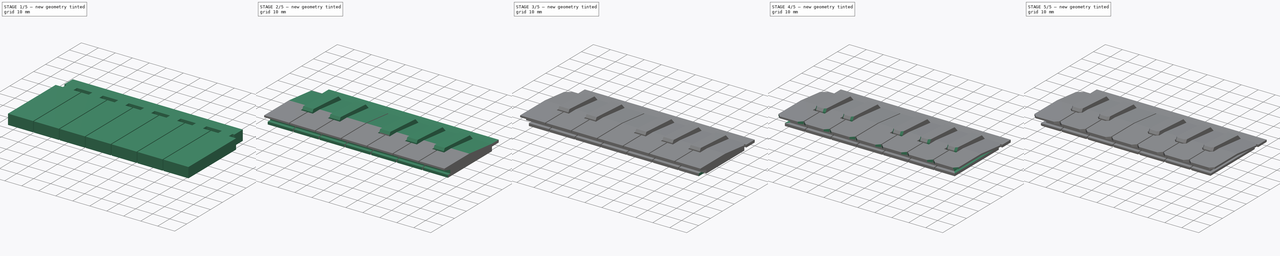
[diagram: build sequence overview — one tinted view per stage of 5, left to right]
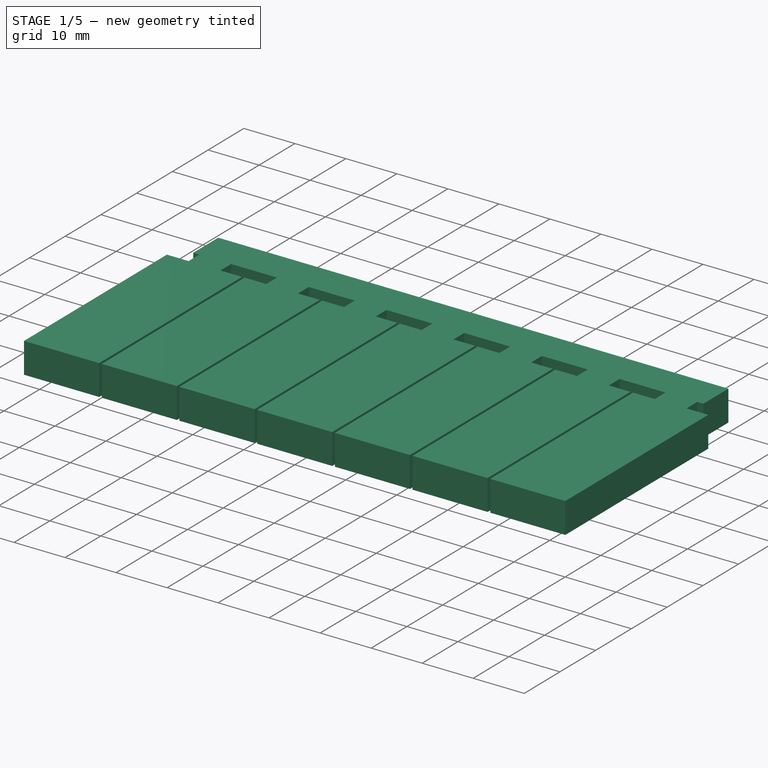
[diagram: stage 1 of 5 — iso view after this stage's code; geometry added in this stage tinted green]
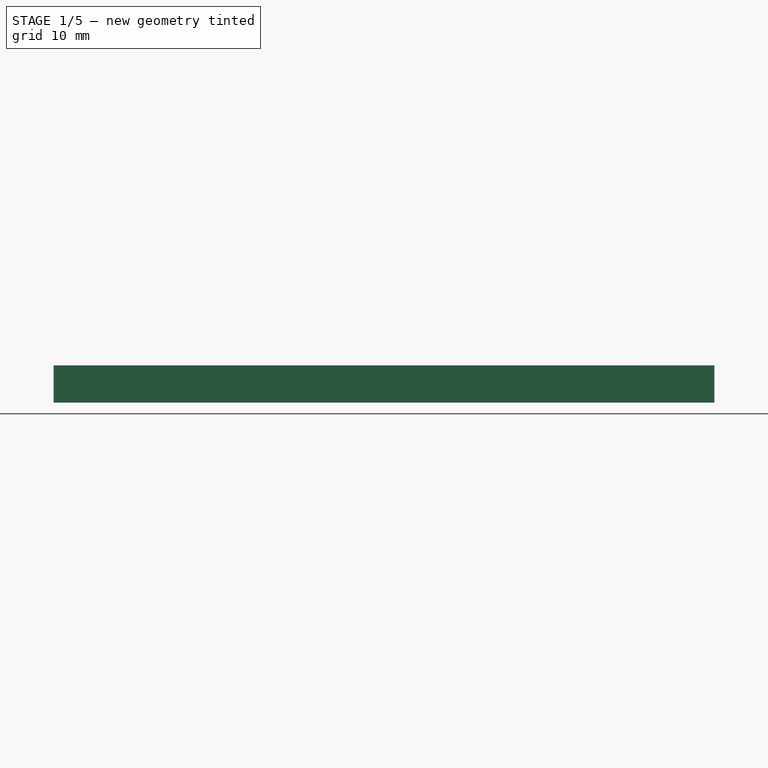
[diagram: stage 1 of 5 — front view after this stage's code; geometry added in this stage tinted green]
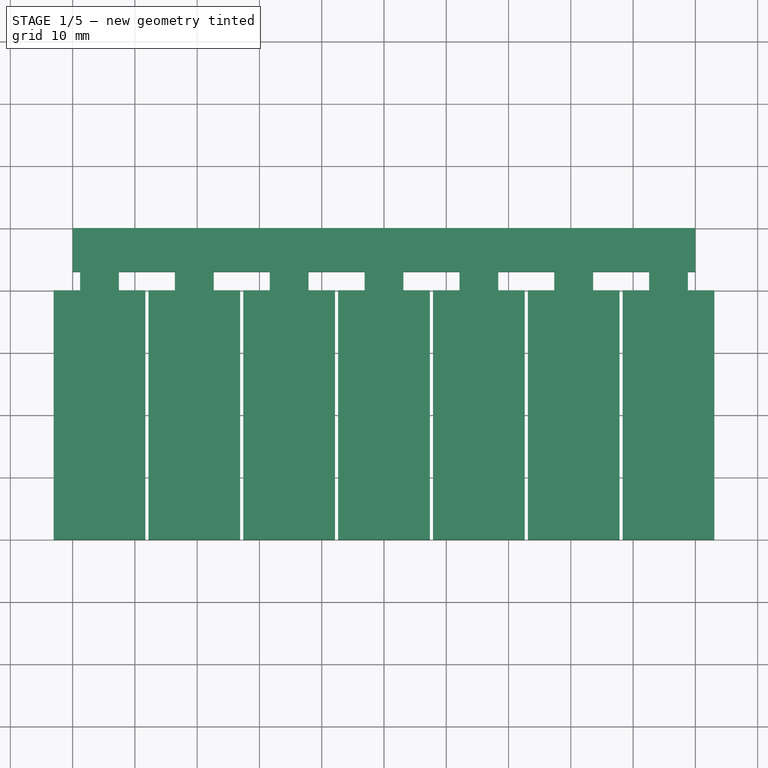
[diagram: stage 1 of 5 — top view after this stage's code; geometry added in this stage tinted green]
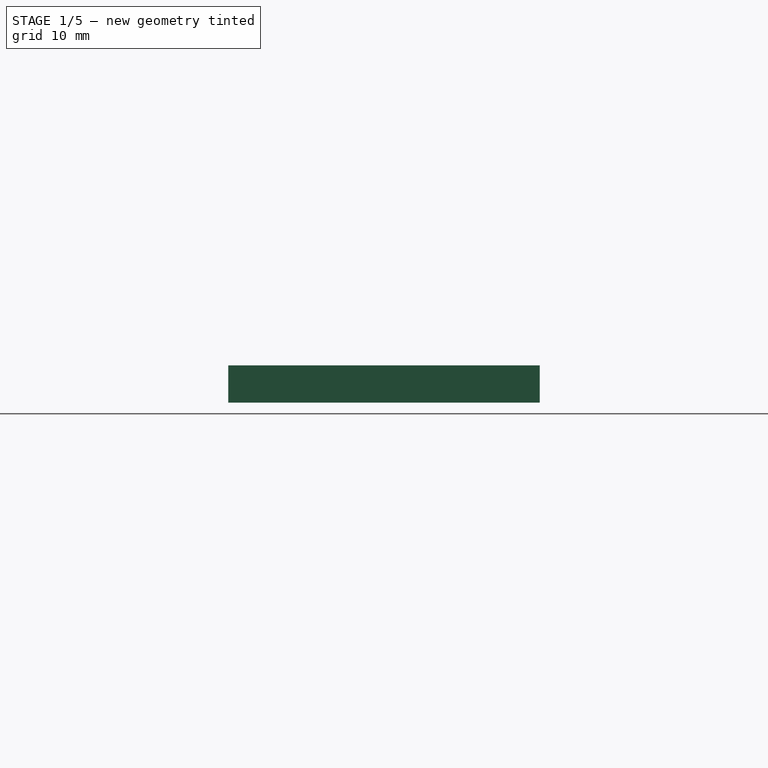
[diagram: stage 1 of 5 — right view after this stage's code; geometry added in this stage tinted green]
FCSTD DOCUMENT  (FreeCAD 0.19R24276 (Git))
Label: piano
License: All rights reserved
LicenseURL: http://en.wikipedia.org/wiki/All_rights_reserved
objects: Sketcher::SketchObject×10, PartDesign::Pocket×8, PartDesign::Chamfer×4, PartDesign::Pad×2, PartDesign::Mirrored×2, PartDesign::LinearPattern×1, PartDesign::Body×1
note: 42 computed .brp shape members not serialized (recipe doc carries the construction recipe); baked Part::Feature solids carry a one-line shape summary decoded from their .brp

FEATURE [Sketcher::SketchObject] Sketch
  FullyConstrained = true
  MapMode = 5
  Support = -> [XY_Plane]
  expr: Constraints[23] = 106.6
  sketch-geometry (10):
    g0: LineSegment StartX=-50 StartY=0 StartZ=0 EndX=50 EndY=0 EndZ=0
    g1: LineSegment StartX=50 StartY=0 StartZ=0 EndX=50 EndY=-10 EndZ=0
    g2: LineSegment StartX=-50 StartY=-10 StartZ=0 EndX=-50 EndY=0 EndZ=0
    g3: LineSegment StartX=-50 StartY=-10 StartZ=0 EndX=0 EndY=0 EndZ=0
    g4: LineSegment StartX=0 StartY=0 StartZ=0 EndX=50 EndY=-10 EndZ=0
    g5: LineSegment StartX=-50 StartY=-10 StartZ=0 EndX=-53.3 EndY=-10 EndZ=0
    g6: LineSegment StartX=50 StartY=-10 StartZ=0 EndX=53.3 EndY=-10 EndZ=0
    g7: LineSegment StartX=53.3 StartY=-10 StartZ=0 EndX=53.3 EndY=-50 EndZ=0
    g8: LineSegment StartX=-53.3 StartY=-10 StartZ=0 EndX=-53.3 EndY=-50 EndZ=0
    g9: LineSegment StartX=-53.3 StartY=-50 StartZ=0 EndX=53.3 EndY=-50 EndZ=0
  constraints (28):
    c: Coincident(g0,g1)
    c: Coincident(g2,g0)
    c: Horizontal(g0)
    c: Vertical(g1)
    c: Vertical(g2)
    c: PointOnObject(g0,g-1)
    c: Coincident(g2,g3)
    c: Coincident(g3,g-1)
    c: Coincident(g3,g4)
    c: Coincident(g4,g1)
    c: Equal(g3,g4)
    c: DistanceX(g0,g0) = 100
    c: DistanceY(g2,g2) = 10
    c: Equal(g1,g2)
    c: Coincident(g2,g5)
    c: Horizontal(g5)
    c: Coincident(g1,g6)
    c: Horizontal(g6)
    c: Coincident(g6,g7)
    c: Vertical(g7)
    c: Coincident(g5,g8)
    c: Vertical(g8)
    c: Equal(g5,g6)
    c: DistanceX(g5,g6) = 106.6
    c: Coincident(g9,g8)
    c: Coincident(g9,g7)
    c: Horizontal(g9)
    c: DistanceY(g8,g0) = 50
FEATURE [PartDesign::Pad] Pad
  Direction = (1,1,1)
  Length = 6
  Length2 = 100
  Profile = -> Sketch
  Type = 0
FEATURE [Sketcher::SketchObject] Sketch001
  FullyConstrained = true
  MapMode = 5
  Support = -> [XY_Plane]
  expr: Constraints[15] = 106.6 / 2
  sketch-geometry (11):
    g0: LineSegment StartX=-53.55 StartY=-10 StartZ=0 EndX=-53.05 EndY=-10 EndZ=0
    g1: LineSegment StartX=-53.05 StartY=-10 StartZ=0 EndX=-53.05 EndY=-50 EndZ=0
    g2: LineSegment StartX=-53.05 StartY=-50 StartZ=0 EndX=-53.55 EndY=-50 EndZ=0
    g3: LineSegment StartX=-53.55 StartY=-50 StartZ=0 EndX=-53.55 EndY=-10 EndZ=0
    g4: LineSegment StartX=-53.05 StartY=-10 StartZ=0 EndX=-53.3 EndY=0 EndZ=0
    g5: LineSegment StartX=-53.3 StartY=0 StartZ=0 EndX=-53.55 EndY=-10 EndZ=0
    g6: LineSegment StartX=-53.05 StartY=-10 StartZ=0 EndX=-48.8 EndY=-10 EndZ=0
    g7: LineSegment StartX=-48.8 StartY=-10 StartZ=0 EndX=-48.8 EndY=-7 EndZ=0
    g8: LineSegment StartX=-48.8 StartY=-7 StartZ=0 EndX=-57.8 EndY=-7 EndZ=0
    g9: LineSegment StartX=-57.8 StartY=-7 StartZ=0 EndX=-57.8 EndY=-10 EndZ=0
    g10: LineSegment StartX=-57.8 StartY=-10 StartZ=0 EndX=-53.55 EndY=-10 EndZ=0
  constraints (31):
    c: Coincident(g0,g1)
    c: Coincident(g1,g2)
    c: Coincident(g2,g3)
    c: Coincident(g3,g0)
    c: Horizontal(g0)
    c: Horizontal(g2)
    c: Vertical(g1)
    c: Vertical(g3)
    c: Coincident(g0,g4)
    c: PointOnObject(g4,g-1)
    c: Coincident(g4,g5)
    c: Coincident(g5,g0)
    c: Equal(g5,g4)
    c: DistanceY(g0,g-1) = 10
    c: DistanceX(g2,g2) = 0.5
    c: DistanceX(g4,g-1) = 53.3
    c: DistanceY(g2,g-1) = 50
    c: Coincident(g1,g6)
    c: Horizontal(g6)
    c: Coincident(g6,g7)
    c: Vertical(g7)
    c: Coincident(g7,g8)
    c: Horizontal(g8)
    c: Coincident(g8,g9)
    c: Vertical(g9)
    c: Coincident(g9,g10)
    c: Coincident(g10,g3)
    c: Horizontal(g10)
    c: Equal(g6,g10)
    c: DistanceX(g8,g8) = 9
    c: DistanceY(g9,g9) = 3
FEATURE [PartDesign::Pocket] Pocket
  BaseFeature = -> Pad
  Length = 5
  Length2 = 100
  Midplane = true
  Profile = -> Sketch001
  Type = 1
FEATURE [PartDesign::LinearPattern] LinearPattern
  BaseFeature = -> Pocket
  Direction = -> X_Axis
  Length = 106.6
  Occurrences = 8
  Originals = -> [Pocket]
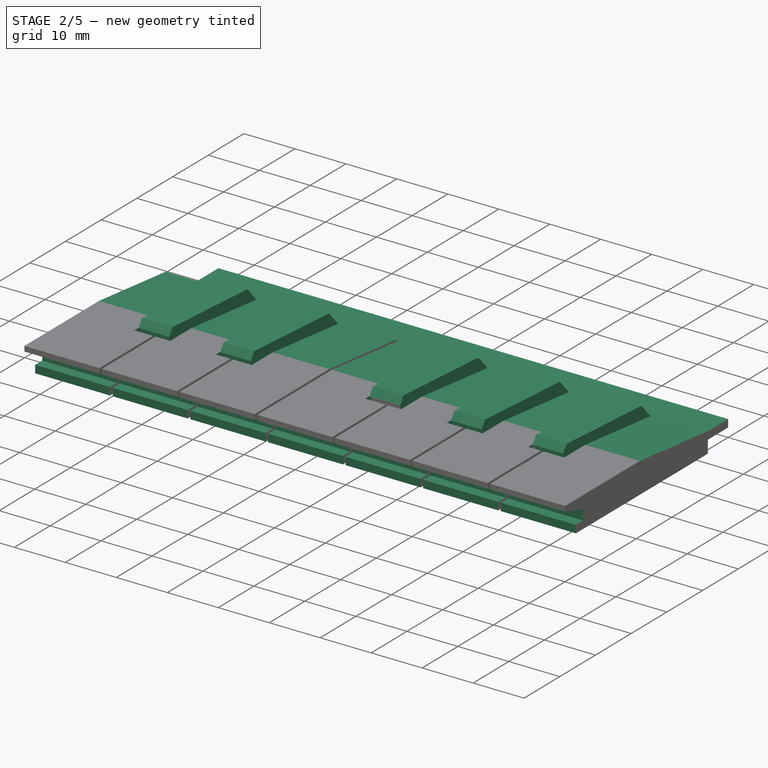
[diagram: stage 2 of 5 — iso view after this stage's code; geometry added in this stage tinted green]
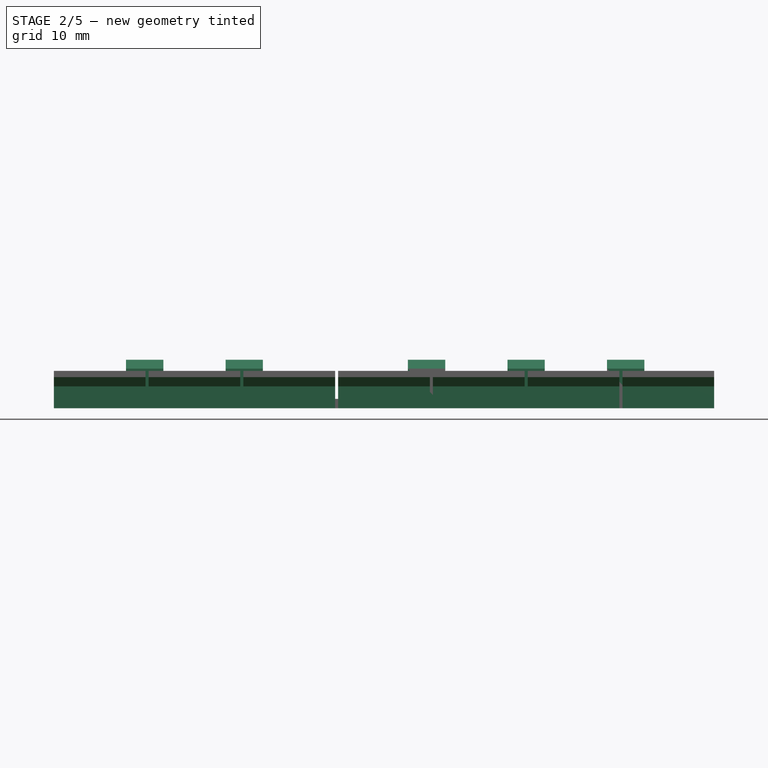
[diagram: stage 2 of 5 — front view after this stage's code; geometry added in this stage tinted green]
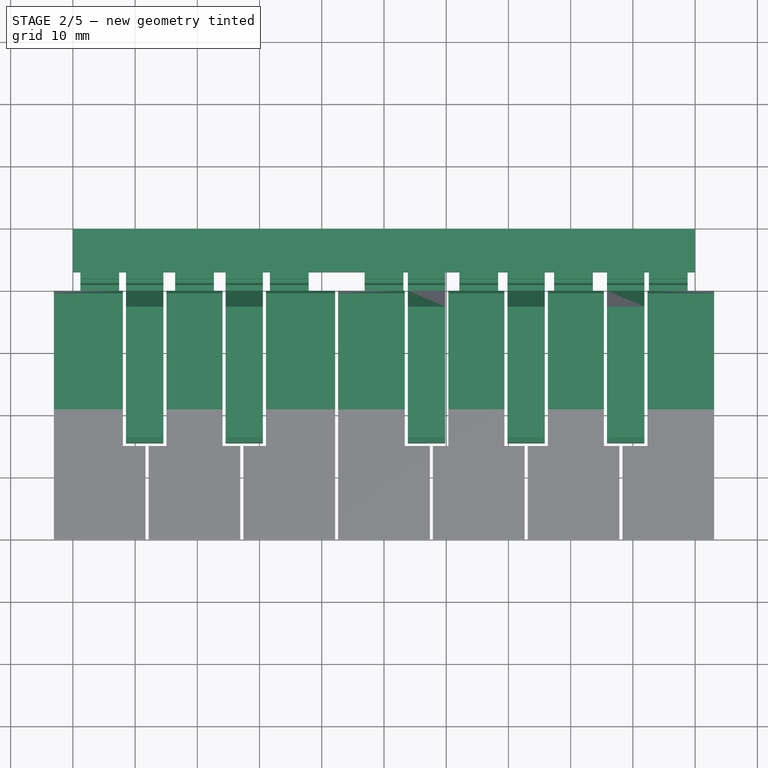
[diagram: stage 2 of 5 — top view after this stage's code; geometry added in this stage tinted green]
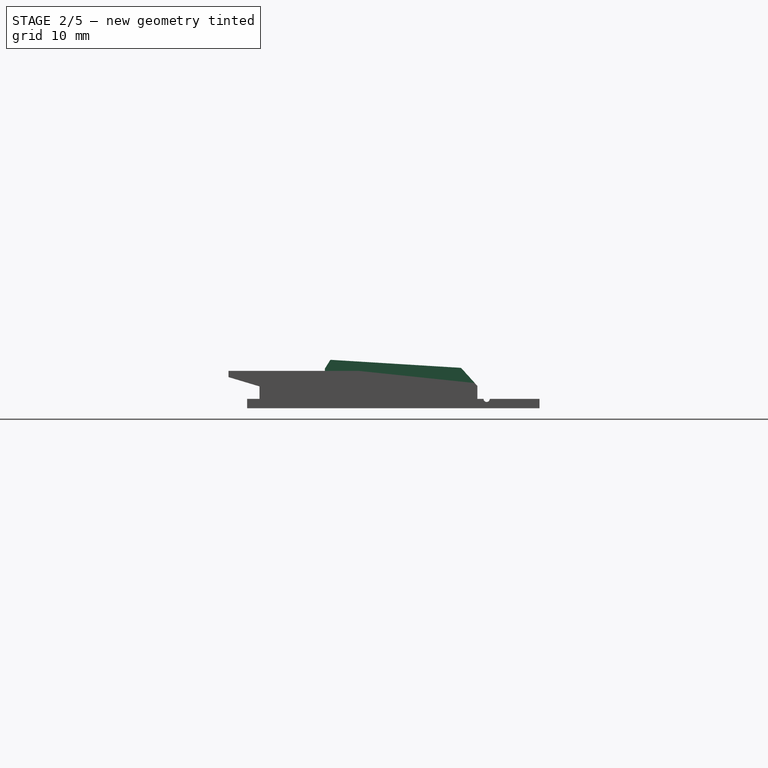
[diagram: stage 2 of 5 — right view after this stage's code; geometry added in this stage tinted green]
FEATURE [Sketcher::SketchObject] Sketch002
  AttachmentOffset = pos=(0,0,55) rot=(0,0,1;0rad)
  FullyConstrained = false
  MapMode = 5
  Placement = pos=(55,-1.22e-14,1.22e-14) rot=(0.57735,0.57735,0.57735;2.0944rad)
  Support = -> [YZ_Plane]
  sketch-geometry (12):
    g0: LineSegment StartX=-29.1054 StartY=6 StartZ=0 EndX=-10 EndY=4 EndZ=0
    g1: LineSegment StartX=-10 StartY=4 StartZ=0 EndX=-10 EndY=1.5 EndZ=0
    g2: LineSegment StartX=-10 StartY=1.5 StartZ=0 EndX=0 EndY=1.5 EndZ=0
    g3: LineSegment StartX=0 StartY=1.5 StartZ=0 EndX=0 EndY=0 EndZ=0
    g4: LineSegment StartX=0 StartY=0 StartZ=0 EndX=-47 EndY=0 EndZ=0
    g5: LineSegment StartX=-47 StartY=0 StartZ=0 EndX=-47 EndY=1.5 EndZ=0
    g6: LineSegment StartX=-47 StartY=1.5 StartZ=0 EndX=-45 EndY=1.5 EndZ=0
    g7: LineSegment StartX=-29.1054 StartY=6 StartZ=0 EndX=-50 EndY=6 EndZ=0
    g8: LineSegment StartX=-50 StartY=6 StartZ=0 EndX=-50 EndY=5 EndZ=0
    g9: LineSegment StartX=-50 StartY=5 StartZ=0 EndX=-45 EndY=3.5 EndZ=0
    g10: LineSegment StartX=-45 StartY=3.5 StartZ=0 EndX=-45 EndY=1.5 EndZ=0
    g11: Circle CenterX=0 CenterY=0 CenterZ=0 NormalX=0 NormalY=0 NormalZ=1 AngleXU=0 Radius=60
  constraints (33):
    c: Coincident(g0,g1)
    c: Vertical(g1)
    c: Coincident(g1,g2)
    c: PointOnObject(g2,g-2)
    c: Horizontal(g2)
    c: Coincident(g2,g3)
    c: Coincident(g3,g-1)
    c: Coincident(g3,g4)
    c: PointOnObject(g4,g-1)
    c: Coincident(g4,g5)
    c: Vertical(g5)
    c: Coincident(g5,g6)
    c: Horizontal(g6)
    c: DistanceX(g4,g4) = 47
    c: DistanceY(g5,g5) = 1.5
    c: DistanceX(g6,g6) = 2
    c: Horizontal(g7)
    c: Coincident(g7,g8)
    c: Vertical(g8)
    c: Coincident(g8,g9)
    c: Coincident(g9,g10)
    c: Coincident(g10,g6)
    c: Vertical(g10)
    c: DistanceY(g3,g7) = 6
    c: DistanceX(g1,g3) = 10
    c: DistanceY(g3,g3) = 1.5
    c: Coincident(g11,g3)
    c: Radius(g11) = 60
    c: DistanceX(g7,g3) = 50
    c: DistanceY(g1,g1) = 2.5
    c: Coincident(g0,g7)
    c: DistanceY(g8,g8) = 1
    c: DistanceY(g9,g9) = 1.5
FEATURE [PartDesign::Pocket] Pocket001
  BaseFeature = -> LinearPattern
  Length = 5
  Length2 = 100
  Midplane = true
  Profile = -> Sketch002
  Type = 1
FEATURE [Sketcher::SketchObject] Sketch003
  AttachmentOffset = pos=(0,0,10) rot=(0,0,1;0rad)
  FullyConstrained = true
  MapMode = 5
  Placement = pos=(0,0,10) rot=(0,0,1;0rad)
  Support = -> [XY_Plane]
  expr: Constraints[76] = 53.3 / 7 * 3
  expr: Constraints[73] = 53.3 / 7 * 4
  sketch-geometry (28):
    g0: LineSegment StartX=-41.9571 StartY=-10 StartZ=0 EndX=-34.9571 EndY=-10 EndZ=0
    g1: LineSegment StartX=-34.9571 StartY=-10 StartZ=0 EndX=-34.9571 EndY=-35 EndZ=0
    g2: LineSegment StartX=-34.9571 StartY=-35 StartZ=0 EndX=-41.9571 EndY=-35 EndZ=0
    g3: LineSegment StartX=-41.9571 StartY=-35 StartZ=0 EndX=-41.9571 EndY=-10 EndZ=0
    g4: LineSegment StartX=-25.9571 StartY=-10 StartZ=0 EndX=-18.9571 EndY=-10 EndZ=0
    g5: LineSegment StartX=-18.9571 StartY=-10 StartZ=0 EndX=-18.9571 EndY=-35 EndZ=0
    g6: LineSegment StartX=-18.9571 StartY=-35 StartZ=0 EndX=-25.9571 EndY=-35 EndZ=0
    g7: LineSegment StartX=-25.9571 StartY=-35 StartZ=0 EndX=-25.9571 EndY=-10 EndZ=0
    g8: LineSegment StartX=3.34286 StartY=-10 StartZ=0 EndX=10.3429 EndY=-10 EndZ=0
    g9: LineSegment StartX=10.3429 StartY=-10 StartZ=0 EndX=10.3429 EndY=-35 EndZ=0
    g10: LineSegment StartX=10.3429 StartY=-35 StartZ=0 EndX=3.34286 EndY=-35 EndZ=0
    g11: LineSegment StartX=3.34286 StartY=-35 StartZ=0 EndX=3.34286 EndY=-10 EndZ=0
    g12: LineSegment StartX=19.3429 StartY=-10 StartZ=0 EndX=26.3429 EndY=-10 EndZ=0
    g13: LineSegment StartX=26.3429 StartY=-10 StartZ=0 EndX=26.3429 EndY=-35 EndZ=0
    g14: LineSegment StartX=26.3429 StartY=-35 StartZ=0 EndX=19.3429 EndY=-35 EndZ=0
    g15: LineSegment StartX=19.3429 StartY=-35 StartZ=0 EndX=19.3429 EndY=-10 EndZ=0
    g16: LineSegment StartX=35.3429 StartY=-10 StartZ=0 EndX=42.3429 EndY=-10 EndZ=0
    g17: LineSegment StartX=42.3429 StartY=-10 StartZ=0 EndX=42.3429 EndY=-35 EndZ=0
    g18: LineSegment StartX=42.3429 StartY=-35 StartZ=0 EndX=35.3429 EndY=-35 EndZ=0
    g19: LineSegment StartX=35.3429 StartY=-35 StartZ=0 EndX=35.3429 EndY=-10 EndZ=0
    g20: LineSegment StartX=-34.9571 StartY=-10 StartZ=0 EndX=-30.4571 EndY=0 EndZ=0
    g21: LineSegment StartX=-30.4571 StartY=0 StartZ=0 EndX=-25.9571 EndY=-10 EndZ=0
    g22: LineSegment StartX=-25.9571 StartY=-10 StartZ=0 EndX=-34.9571 EndY=-10 EndZ=0
    g23: LineSegment StartX=10.3429 StartY=-10 StartZ=0 EndX=19.3429 EndY=-10 EndZ=0
    g24: LineSegment StartX=26.3429 StartY=-10 StartZ=0 EndX=35.3429 EndY=-10 EndZ=0
    g25: LineSegment StartX=-18.9571 StartY=-10 StartZ=0 EndX=3.34286 EndY=-10 EndZ=0
    g26: LineSegment StartX=19.3429 StartY=-10 StartZ=0 EndX=22.8429 EndY=0 EndZ=0
    g27: LineSegment StartX=26.3429 StartY=-10 StartZ=0 EndX=22.8429 EndY=0 EndZ=0
  constraints (78):
    c: Coincident(g0,g1)
    c: Coincident(g1,g2)
    c: Coincident(g2,g3)
    c: Coincident(g3,g0)
    c: Horizontal(g0)
    c: Horizontal(g2)
    c: Vertical(g1)
    c: Vertical(g3)
    c: Coincident(g4,g5)
    c: Coincident(g5,g6)
    c: Coincident(g6,g7)
    c: Coincident(g7,g4)
    c: Horizontal(g4)
    c: Horizontal(g6)
    c: Vertical(g5)
    c: Vertical(g7)
    c: Coincident(g8,g9)
    c: Coincident(g9,g10)
    c: Coincident(g10,g11)
    c: Coincident(g11,g8)
    c: Horizontal(g8)
    c: Horizontal(g10)
    c: Vertical(g9)
    c: Vertical(g11)
    c: Coincident(g12,g13)
    c: Coincident(g13,g14)
    c: Coincident(g14,g15)
    c: Coincident(g15,g12)
    c: Horizontal(g12)
    c: Horizontal(g14)
    c: Vertical(g13)
    c: Vertical(g15)
    c: Coincident(g16,g17)
    c: Coincident(g17,g18)
    c: Coincident(g18,g19)
    c: Coincident(g19,g16)
    c: Horizontal(g16)
    c: Horizontal(g18)
    c: Vertical(g17)
    c: Vertical(g19)
    c: Coincident(g0,g20)
    c: PointOnObject(g20,g-1)
    c: Coincident(g20,g21)
    c: Coincident(g21,g4)
    c: Coincident(g21,g22)
    c: Coincident(g22,g20)
    c: Horizontal(g22)
    c: Coincident(g8,g23)
    c: Coincident(g23,g12)
    c: Horizontal(g23)
    c: Coincident(g12,g24)
    c: Coincident(g24,g16)
    c: Horizontal(g24)
    c: Coincident(g4,g25)
    c: Coincident(g25,g8)
    c: Horizontal(g25)
    c: Coincident(g26,g12)
    c: PointOnObject(g26,g-1)
    c: Coincident(g27,g12)
    c: Coincident(g27,g26)
    c: Equal(g26,g27)
    c: Equal(g20,g21)
    c: DistanceY(g20,g20) = 10
    c: Equal(g2,g6)
    c: Equal(g6,g10)
    c: Equal(g10,g14)
    c: Equal(g14,g18)
    c: DistanceX(g0,g0) = 7
    c: Equal(g3,g7)
    c: Equal(g7,g11)
    c: Equal(g11,g15)
    c: Equal(g15,g19)
    c: DistanceY(g3,g3) = 25
    c: DistanceX(g20,g-1) = 30.4571
    c: Equal(g22,g23)
    c: Equal(g23,g24)
    c: DistanceX(g-1,g26) = 22.8429
    c: DistanceX(g22,g22) = 9
FEATURE [PartDesign::Pocket] Pocket002
  BaseFeature = -> Pocket001
  Length = 5
  Length2 = 100
  Profile = -> Sketch003
  Type = 1
FEATURE [Sketcher::SketchObject] Sketch004
  FullyConstrained = true
  MapMode = 5
  Support = -> [XY_Plane]
  expr: Constraints[74] = 53.3 / 7 * 3
  expr: Constraints[73] = 53.3 / 7 * 4
  sketch-geometry (28):
    g0: LineSegment StartX=-41.4571 StartY=-4 StartZ=0 EndX=-35.4571 EndY=-4 EndZ=0
    g1: LineSegment StartX=-35.4571 StartY=-4 StartZ=0 EndX=-35.4571 EndY=-34.5 EndZ=0
    g2: LineSegment StartX=-35.4571 StartY=-34.5 StartZ=0 EndX=-41.4571 EndY=-34.5 EndZ=0
    g3: LineSegment StartX=-41.4571 StartY=-34.5 StartZ=0 EndX=-41.4571 EndY=-4 EndZ=0
    g4: LineSegment StartX=-35.4571 StartY=-4 StartZ=0 EndX=-30.4571 EndY=0 EndZ=0
    g5: LineSegment StartX=-30.4571 StartY=0 StartZ=0 EndX=-25.4571 EndY=-4 EndZ=0
    g6: LineSegment StartX=19.8429 StartY=-4 StartZ=0 EndX=22.8429 EndY=0 EndZ=0
    g7: LineSegment StartX=22.8429 StartY=0 StartZ=0 EndX=25.8429 EndY=-4 EndZ=0
    g8: LineSegment StartX=-25.4571 StartY=-4 StartZ=0 EndX=-19.4571 EndY=-4 EndZ=0
    g9: LineSegment StartX=-19.4571 StartY=-4 StartZ=0 EndX=-19.4571 EndY=-34.5 EndZ=0
    g10: LineSegment StartX=-19.4571 StartY=-34.5 StartZ=0 EndX=-25.4571 EndY=-34.5 EndZ=0
    g11: LineSegment StartX=-25.4571 StartY=-34.5 StartZ=0 EndX=-25.4571 EndY=-4 EndZ=0
    g12: LineSegment StartX=3.84286 StartY=-4 StartZ=0 EndX=9.84286 EndY=-4 EndZ=0
    g13: LineSegment StartX=9.84286 StartY=-4 StartZ=0 EndX=9.84286 EndY=-34.5 EndZ=0
    g14: LineSegment StartX=9.84286 StartY=-34.5 StartZ=0 EndX=3.84286 EndY=-34.5 EndZ=0
    g15: LineSegment StartX=3.84286 StartY=-34.5 StartZ=0 EndX=3.84286 EndY=-4 EndZ=0
    g16: LineSegment StartX=19.8429 StartY=-4 StartZ=0 EndX=25.8429 EndY=-4 EndZ=0
    g17: LineSegment StartX=25.8429 StartY=-4 StartZ=0 EndX=25.8429 EndY=-34.5 EndZ=0
    g18: LineSegment StartX=25.8429 StartY=-34.5 StartZ=0 EndX=19.8429 EndY=-34.5 EndZ=0
    g19: LineSegment StartX=19.8429 StartY=-34.5 StartZ=0 EndX=19.8429 EndY=-4 EndZ=0
    g20: LineSegment StartX=35.8429 StartY=-4 StartZ=0 EndX=41.8429 EndY=-4 EndZ=0
    g21: LineSegment StartX=41.8429 StartY=-4 StartZ=0 EndX=41.8429 EndY=-34.5 EndZ=0
    g22: LineSegment StartX=41.8429 StartY=-34.5 StartZ=0 EndX=35.8429 EndY=-34.5 EndZ=0
    g23: LineSegment StartX=35.8429 StartY=-34.5 StartZ=0 EndX=35.8429 EndY=-4 EndZ=0
    g24: LineSegment StartX=-35.4571 StartY=-4 StartZ=0 EndX=-25.4571 EndY=-4 EndZ=0
    g25: LineSegment StartX=-19.4571 StartY=-4 StartZ=0 EndX=3.84286 EndY=-4 EndZ=0
    g26: LineSegment StartX=9.84286 StartY=-4 StartZ=0 EndX=19.8429 EndY=-4 EndZ=0
    g27: LineSegment StartX=25.8429 StartY=-4 StartZ=0 EndX=35.8429 EndY=-4 EndZ=0
  constraints (78):
    c: Coincident(g0,g1)
    c: Coincident(g1,g2)
    c: Coincident(g2,g3)
    c: Coincident(g3,g0)
    c: Horizontal(g0)
    c: Horizontal(g2)
    c: Vertical(g1)
    c: Vertical(g3)
    c: Coincident(g0,g4)
    c: PointOnObject(g4,g-1)
    c: Coincident(g4,g5)
    c: PointOnObject(g6,g-1)
    c: Coincident(g6,g7)
    c: Coincident(g8,g9)
    c: Coincident(g9,g10)
    c: Coincident(g10,g11)
    c: Coincident(g11,g8)
    c: Horizontal(g8)
    c: Horizontal(g10)
    c: Vertical(g9)
    c: Vertical(g11)
    c: Coincident(g8,g5)
    c: Coincident(g12,g13)
    c: Coincident(g13,g14)
    c: Coincident(g14,g15)
    c: Coincident(g15,g12)
    c: Horizontal(g12)
    c: Horizontal(g14)
    c: Vertical(g13)
    c: Vertical(g15)
    c: Coincident(g16,g17)
    c: Coincident(g17,g18)
    c: Coincident(g18,g19)
    c: Coincident(g19,g16)
    c: Horizontal(g16)
    c: Horizontal(g18)
    c: Vertical(g17)
    c: Vertical(g19)
    c: Coincident(g16,g6)
    c: Coincident(g16,g7)
    c: Equal(g4,g5)
    c: Equal(g6,g7)
    c: Coincident(g20,g21)
    c: Coincident(g21,g22)
    c: Coincident(g22,g23)
    c: Coincident(g23,g20)
    c: Horizontal(g20)
    c: Horizontal(g22)
    c: Vertical(g21)
    c: Vertical(g23)
    c: Coincident(g24,g0)
    c: Coincident(g24,g8)
    c: Horizontal(g24)
    c: Coincident(g25,g8)
    c: Coincident(g25,g12)
    c: Horizontal(g25)
    c: Coincident(g26,g12)
    c: Coincident(g26,g16)
    c: Horizontal(g26)
    c: Coincident(g27,g16)
    c: Coincident(g27,g20)
    c: Horizontal(g27)
    c: Equal(g27,g26)
    c: Equal(g26,g24)
    c: Equal(g0,g8)
    c: Equal(g8,g12)
    c: Equal(g12,g16)
    c: Equal(g16,g20)
    c: Equal(g3,g11)
    c: Equal(g11,g15)
    c: Equal(g15,g19)
    c: Equal(g19,g23)
    c: DistanceY(g0,g-1) = 4
    c: DistanceX(g4,g-1) = 30.4571
    c: DistanceX(g-1,g6) = 22.8429
    c: DistanceX(g0,g0) = 6
    c: DistanceX(g24,g24) = 10
    c: DistanceY(g2,g-1) = 34.5
FEATURE [PartDesign::Pad] Pad001
  BaseFeature = -> Pocket002
  Direction = (1,1,1)
  Length = 8
  Length2 = 100
  Profile = -> Sketch004
  Type = 0
FEATURE [Sketcher::SketchObject] Sketch005
  AttachmentOffset = pos=(0,0,55) rot=(0,0,1;0rad)
  FullyConstrained = false
  MapMode = 5
  Placement = pos=(55,-1.22e-14,1.22e-14) rot=(0.57735,0.57735,0.57735;2.0944rad)
  Support = -> [YZ_Plane]
  sketch-geometry (11):
    g0: LineSegment StartX=-34.6267 StartY=6.16145 StartZ=0 EndX=-33.6164 EndY=7.77518 EndZ=0
    g1: LineSegment StartX=-33.6164 StartY=7.77518 StartZ=0 EndX=-12.6152 EndY=6.48273 EndZ=0
    g2: LineSegment StartX=-12.6152 StartY=6.48273 StartZ=0 EndX=-10 EndY=3.58153 EndZ=0
    g3: LineSegment StartX=-34.6267 StartY=6.16145 StartZ=0 EndX=-34.6267 EndY=11.4707 EndZ=0
    g4: LineSegment StartX=-34.6267 StartY=11.4707 StartZ=0 EndX=0 EndY=11.4707 EndZ=0
    g5: LineSegment StartX=0 StartY=11.4707 StartZ=0 EndX=0 EndY=1.5 EndZ=0
    g6: LineSegment StartX=0 StartY=1.5 StartZ=0 EndX=-8 EndY=1.5 EndZ=0
    g7: LineSegment StartX=-8 StartY=1.5 StartZ=0 EndX=-9 EndY=1.5 EndZ=0
    g8: LineSegment StartX=-10 StartY=3.58153 StartZ=0 EndX=-10 EndY=1.5 EndZ=0
    g9: LineSegment StartX=-10 StartY=1.5 StartZ=0 EndX=-9 EndY=1.5 EndZ=0
    g10: ArcOfCircle CenterX=-8.5 CenterY=1.5 CenterZ=0 NormalX=0 NormalY=0 NormalZ=1 AngleXU=0 Radius=0.5 StartAngle=3.14159 EndAngle=6.28319
  constraints (25):
    c: Coincident(g0,g1)
    c: Coincident(g1,g2)
    c: Coincident(g0,g3)
    c: Vertical(g3)
    c: Coincident(g3,g4)
    c: Horizontal(g4)
    c: Coincident(g4,g5)
    c: PointOnObject(g5,g-2)
    c: Vertical(g5)
    c: Coincident(g5,g6)
    c: Horizontal(g6)
    c: Coincident(g7,g6)
    c: Horizontal(g7)
    c: Coincident(g2,g8)
    c: Vertical(g8)
    c: Coincident(g8,g9)
    c: Coincident(g9,g7)
    c: Horizontal(g9)
    c: DistanceX(g7,g7) = 1
    c: PointOnObject(g10,g7)
    c: Coincident(g10,g9)
    c: Coincident(g10,g6)
    c: DistanceY(g-1,g5) = 1.5
    c: DistanceX(g10,g-1) = 8.5
    c: DistanceX(g8,g-1) = 10
FEATURE [PartDesign::Pocket] Pocket003
  BaseFeature = -> Pad001
  Length = 5
  Length2 = 100
  Midplane = true
  Profile = -> Sketch005
  Refine = true
  Type = 1
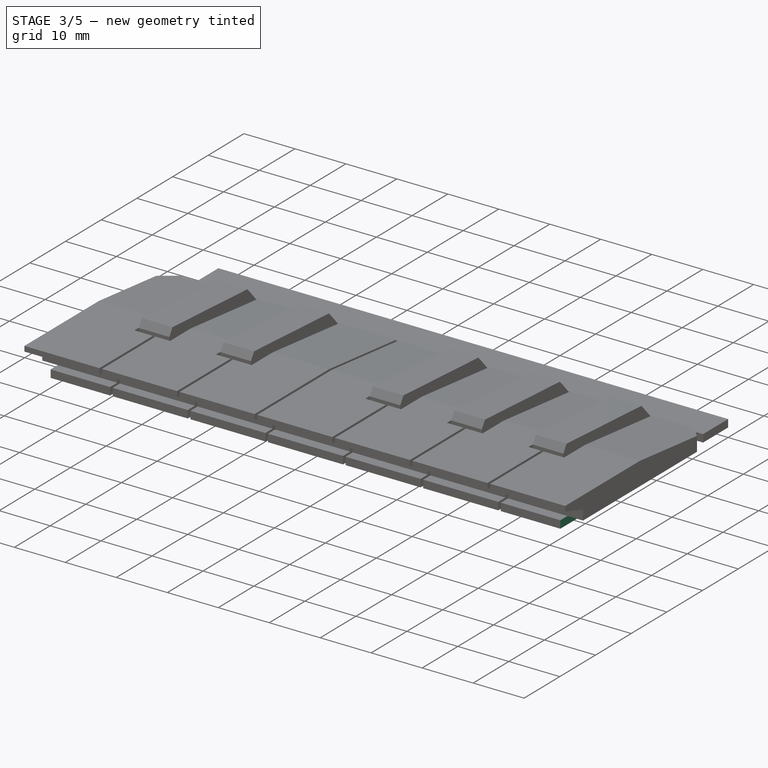
[diagram: stage 3 of 5 — iso view after this stage's code; geometry added in this stage tinted green]
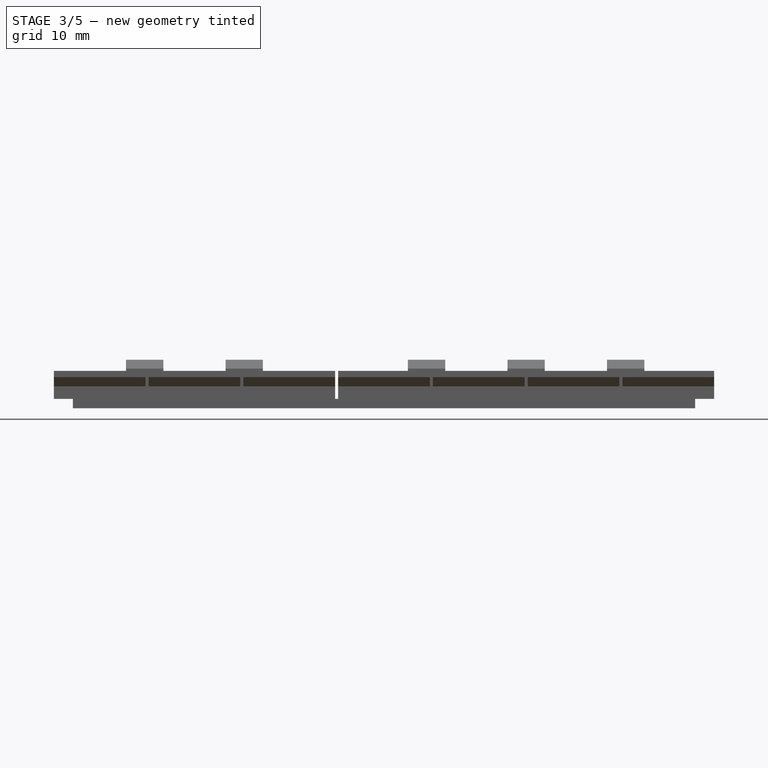
[diagram: stage 3 of 5 — front view after this stage's code; geometry added in this stage tinted green]
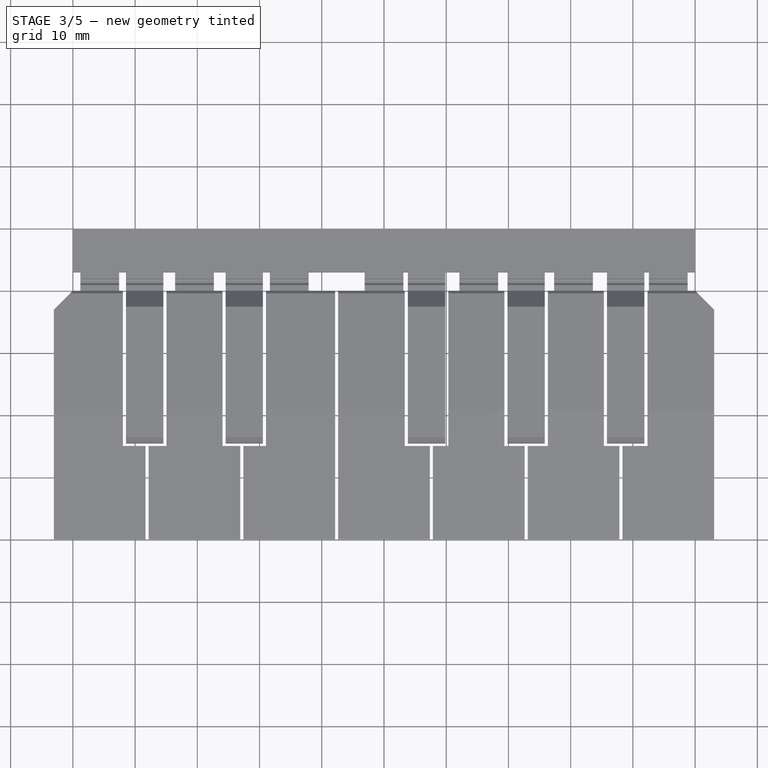
[diagram: stage 3 of 5 — top view after this stage's code; geometry added in this stage tinted green]
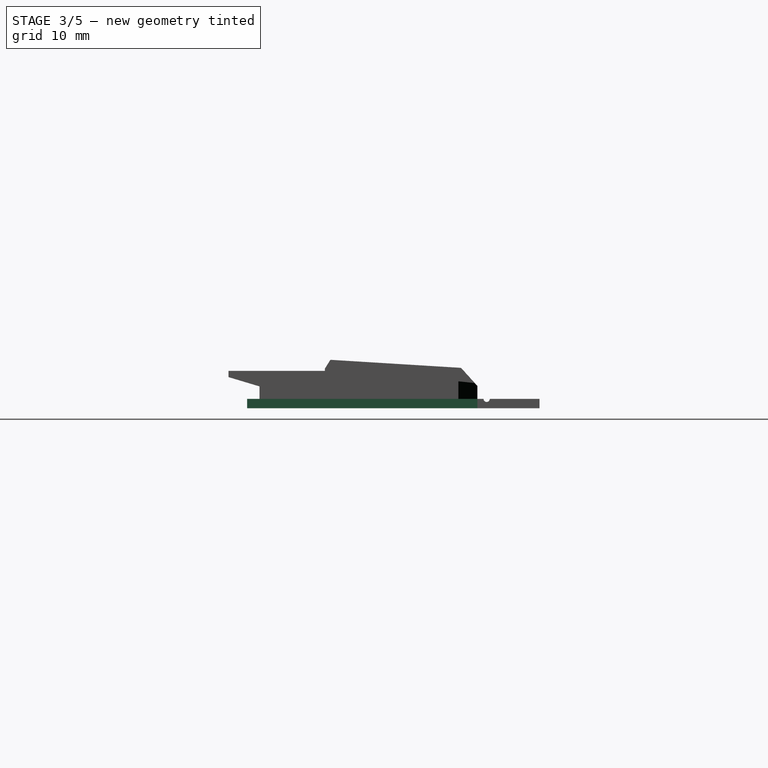
[diagram: stage 3 of 5 — right view after this stage's code; geometry added in this stage tinted green]
FEATURE [Sketcher::SketchObject] Sketch006
  FullyConstrained = true
  MapMode = 5
  Placement = pos=(0,0,0) rot=(1,0,0;1.5708rad)
  Support = -> [XZ_Plane]
  sketch-geometry (4):
    g0: LineSegment StartX=-50 StartY=1.5 StartZ=0 EndX=-50 EndY=0 EndZ=0
    g1: LineSegment StartX=-50 StartY=0 StartZ=0 EndX=-60 EndY=0 EndZ=0
    g2: LineSegment StartX=-60 StartY=0 StartZ=0 EndX=-60 EndY=1.5 EndZ=0
    g3: LineSegment StartX=-60 StartY=1.5 StartZ=0 EndX=-50 EndY=1.5 EndZ=0
  constraints (12):
    c: PointOnObject(g0,g-1)
    c: Vertical(g0)
    c: Coincident(g0,g1)
    c: PointOnObject(g1,g-1)
    c: Coincident(g1,g2)
    c: Vertical(g2)
    c: Coincident(g2,g3)
    c: DistanceY(g0,g0) = 1.5
    c: DistanceX(g0,g-1) = 50
    c: DistanceX(g2,g-1) = 60
    c: Horizontal(g3)
    c: Coincident(g3,g0)
FEATURE [PartDesign::Pocket] Pocket004
  BaseFeature = -> Pocket003
  Length = 5
  Length2 = 100
  Midplane = true
  Profile = -> Sketch006
  Type = 1
FEATURE [PartDesign::Mirrored] Mirrored
  BaseFeature = -> Pocket004
  MirrorPlane = -> YZ_Plane
  Originals = -> [Pocket004]
FEATURE [Sketcher::SketchObject] Sketch007
  FullyConstrained = true
  MapMode = 5
  Support = -> [XY_Plane]
  sketch-geometry (9):
    g0: LineSegment StartX=-54.5 StartY=-9.5 StartZ=0 EndX=-49.5 EndY=-9.5 EndZ=0
    g1: LineSegment StartX=-49.5 StartY=-9.5 StartZ=0 EndX=-54.5 EndY=-14.5 EndZ=0
    g2: LineSegment StartX=-54.5 StartY=-14.5 StartZ=0 EndX=-54.5 EndY=-9.5 EndZ=0
    g3: LineSegment StartX=-49.5 StartY=-9.5 StartZ=0 EndX=49.5 EndY=-9.5 EndZ=0
    g4: LineSegment StartX=49.5 StartY=-9.5 StartZ=0 EndX=54.5 EndY=-14.5 EndZ=0
    g5: LineSegment StartX=54.5 StartY=-14.5 StartZ=0 EndX=54.5 EndY=-9.5 EndZ=0
    g6: LineSegment StartX=54.5 StartY=-9.5 StartZ=0 EndX=49.5 EndY=-9.5 EndZ=0
    g7: LineSegment StartX=-49.5 StartY=-9.5 StartZ=0 EndX=0 EndY=0 EndZ=0
    g8: LineSegment StartX=0 StartY=0 StartZ=0 EndX=49.5 EndY=-9.5 EndZ=0
  constraints (24):
    c: Horizontal(g0)
    c: Coincident(g0,g1)
    c: Coincident(g1,g2)
    c: Coincident(g2,g0)
    c: Coincident(g0,g3)
    c: Horizontal(g3)
    c: Coincident(g3,g4)
    c: Coincident(g4,g5)
    c: Vertical(g5)
    c: Coincident(g5,g6)
    c: Coincident(g6,g3)
    c: Horizontal(g6)
    c: Coincident(g0,g7)
    c: Coincident(g7,g-1)
    c: Coincident(g7,g8)
    c: Coincident(g8,g4)
    c: Equal(g8,g7)
    c: DistanceX(g3,g3) = 99
    c: Vertical(g2)
    c: Equal(g6,g5)
    c: Equal(g5,g2)
    c: Equal(g2,g0)
    c: DistanceY(g4,g-1) = 9.5
    c: DistanceX(g6,g6) = 5
FEATURE [PartDesign::Pocket] Pocket005
  BaseFeature = -> Mirrored
  Length = 5
  Length2 = 100
  Midplane = true
  Profile = -> Sketch007
  Refine = true
  Type = 1
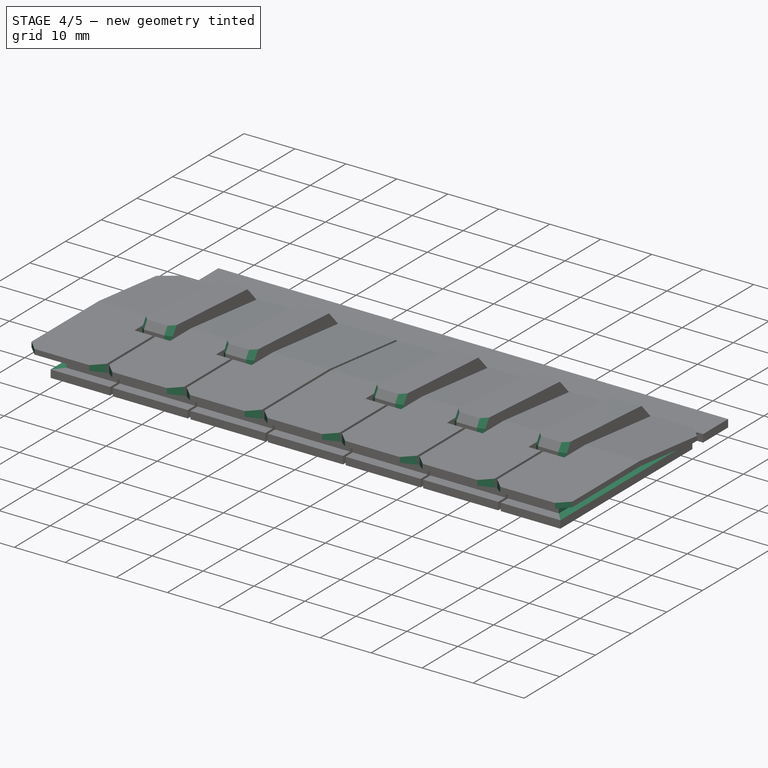
[diagram: stage 4 of 5 — iso view after this stage's code; geometry added in this stage tinted green]
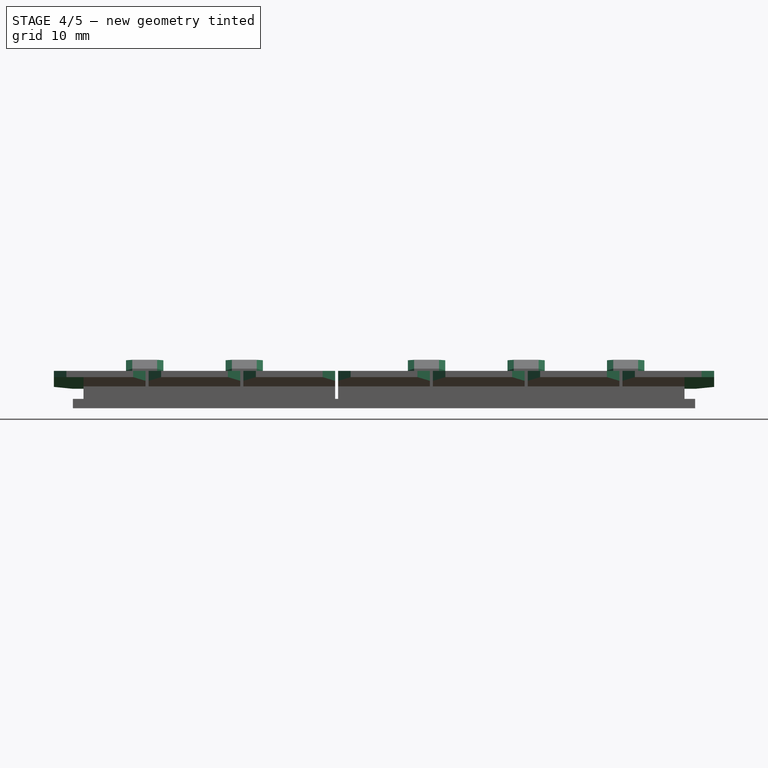
[diagram: stage 4 of 5 — front view after this stage's code; geometry added in this stage tinted green]
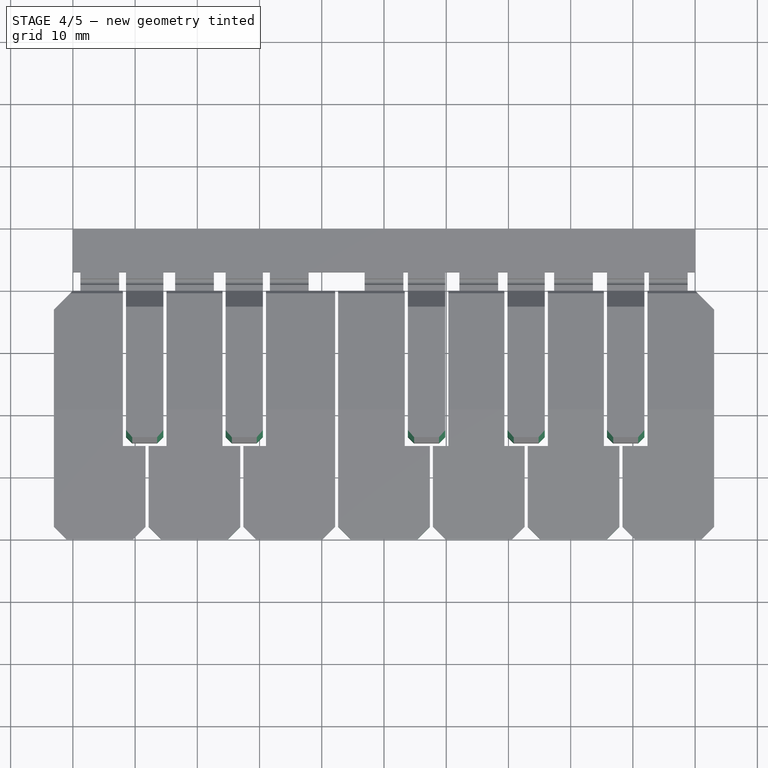
[diagram: stage 4 of 5 — top view after this stage's code; geometry added in this stage tinted green]
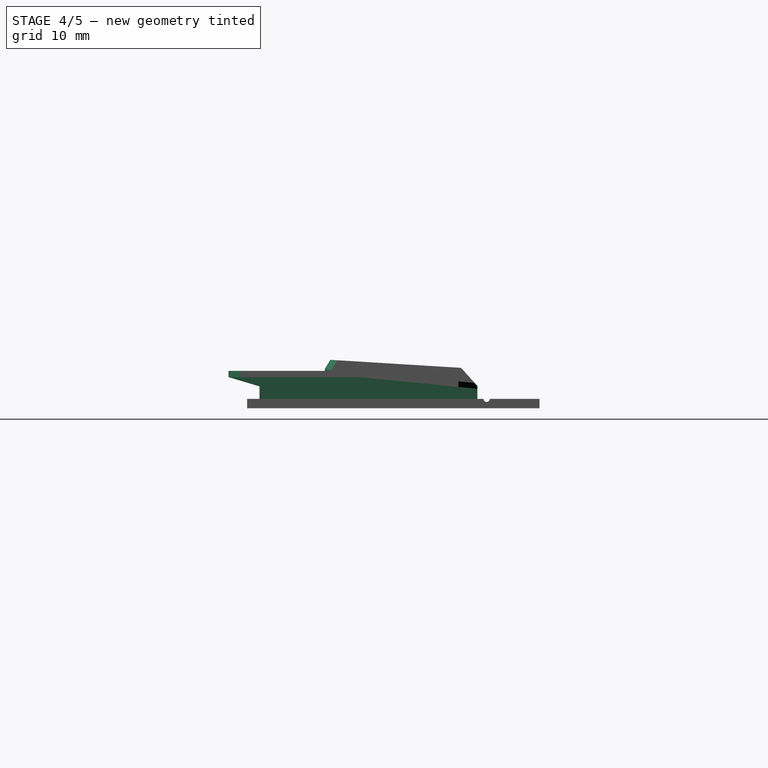
[diagram: stage 4 of 5 — right view after this stage's code; geometry added in this stage tinted green]
FEATURE [Sketcher::SketchObject] Sketch008
  AttachmentOffset = pos=(0,0,53.3) rot=(0,0,1;0rad)
  FullyConstrained = false
  MapMode = 5
  Placement = pos=(53.3,-1.18e-14,1.18e-14) rot=(0.57735,0.57735,0.57735;2.0944rad)
  Support = -> [YZ_Plane]
  sketch-geometry (5):
    g0: LineSegment StartX=-50 StartY=5 StartZ=0 EndX=-28.8872 EndY=5 EndZ=0
    g1: LineSegment StartX=-28.8872 StartY=5 StartZ=0 EndX=-10 EndY=3.11599 EndZ=0
    g2: LineSegment StartX=-10 StartY=3.11599 StartZ=0 EndX=-10 EndY=1.5 EndZ=0
    g3: LineSegment StartX=-10 StartY=1.5 StartZ=0 EndX=-50 EndY=1.5 EndZ=0
    g4: LineSegment StartX=-50 StartY=1.5 StartZ=0 EndX=-50 EndY=5 EndZ=0
  constraints (13):
    c: Horizontal(g0)
    c: Coincident(g0,g1)
    c: Coincident(g1,g2)
    c: Vertical(g2)
    c: Coincident(g2,g3)
    c: Horizontal(g3)
    c: Coincident(g3,g4)
    c: Coincident(g4,g0)
    c: Vertical(g4)
    c: DistanceY(g-1,g0) = 5
    c: DistanceX(g0,g-1) = 50
    c: DistanceY(g-1,g2) = 1.5
    c: DistanceX(g2,g-1) = 10
FEATURE [PartDesign::Pocket] Pocket006
  BaseFeature = -> Pocket005
  Length = 5
  Length2 = 100
  Profile = -> Sketch008
  Type = 0
FEATURE [PartDesign::Mirrored] Mirrored001
  BaseFeature = -> Pocket006
  MirrorPlane = -> YZ_Plane
  Originals = -> [Pocket006]
  Refine = true
FEATURE [PartDesign::Chamfer] Chamfer
  Angle = 45
  Base = -> Mirrored001 [Edge352,Edge523,Edge328,Edge364,Edge382,Edge395,Edge401,Edge415,Edge433,Edge445,Edge455,Edge467,Edge483,Edge582]
  BaseFeature = -> Mirrored001
  ChamferType = 0
  FlipDirection = false
  Size = 2
  Size2 = 1
  SupportTransform = false
FEATURE [PartDesign::Chamfer] Chamfer001
  Angle = 45
  Base = -> Chamfer [Edge172,Edge171,Edge174,Edge176,Edge232,Edge231,Edge234,Edge236,Edge324,Edge323,Edge326,Edge328,Edge384,Edge383,Edge386,Edge388,Edge444,Edge443,Edge446,Edge448]
  BaseFeature = -> Chamfer
  ChamferType = 0
  FlipDirection = false
  Size = 1
  Size2 = 1
  SupportTransform = false
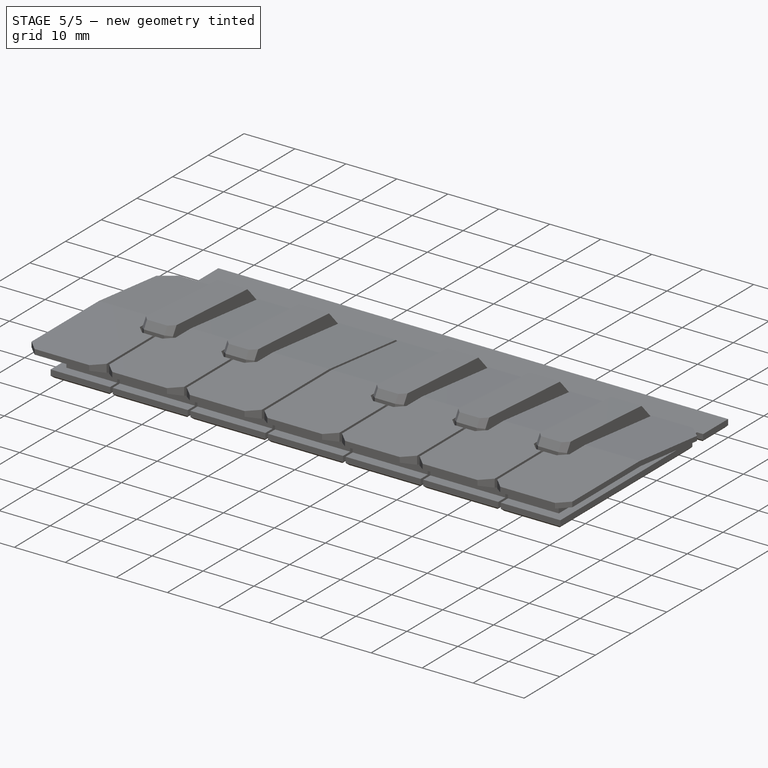
[diagram: stage 5 of 5 — iso view after this stage's code; geometry added in this stage tinted green]
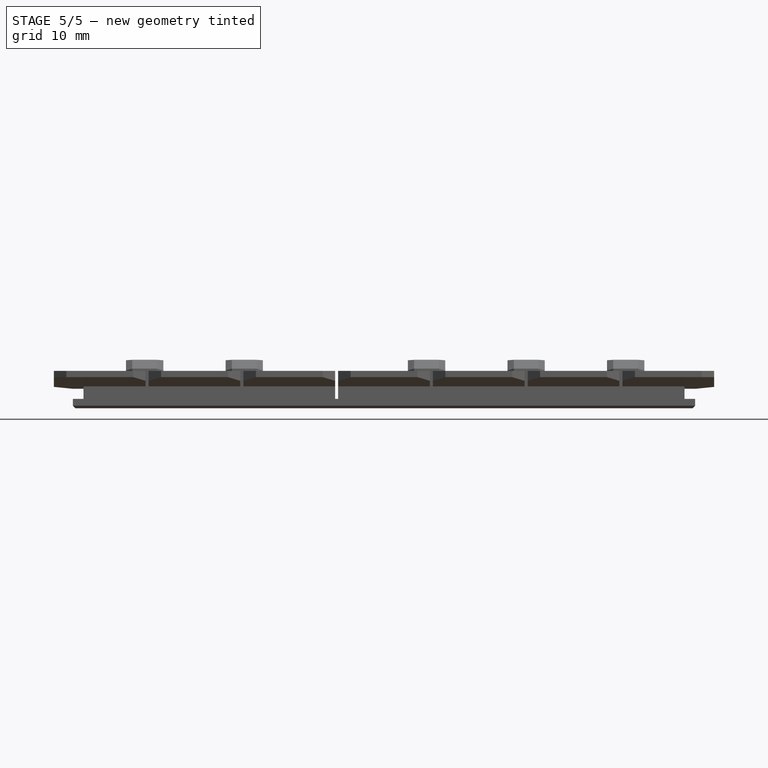
[diagram: stage 5 of 5 — front view after this stage's code; geometry added in this stage tinted green]
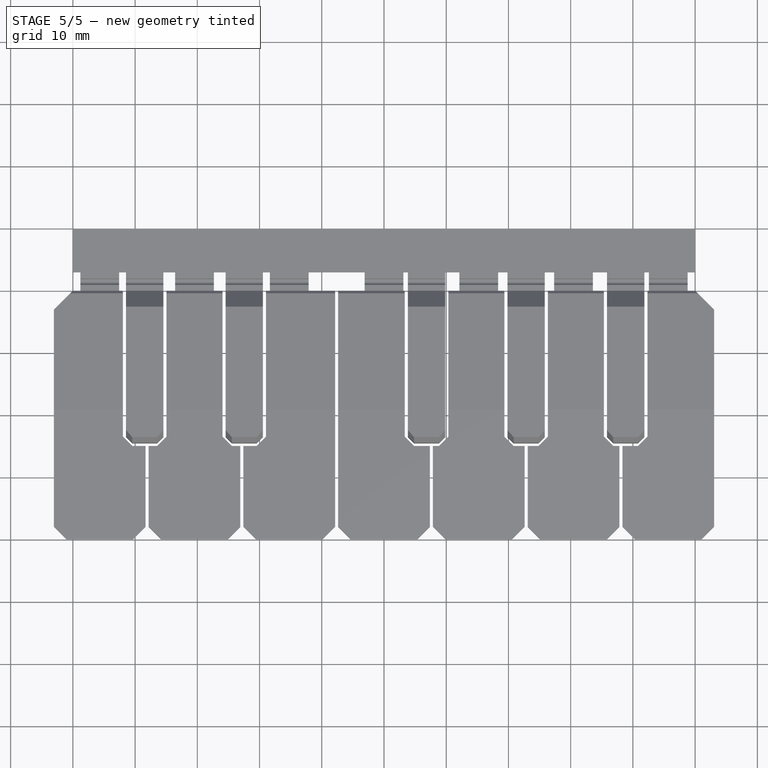
[diagram: stage 5 of 5 — top view after this stage's code; geometry added in this stage tinted green]
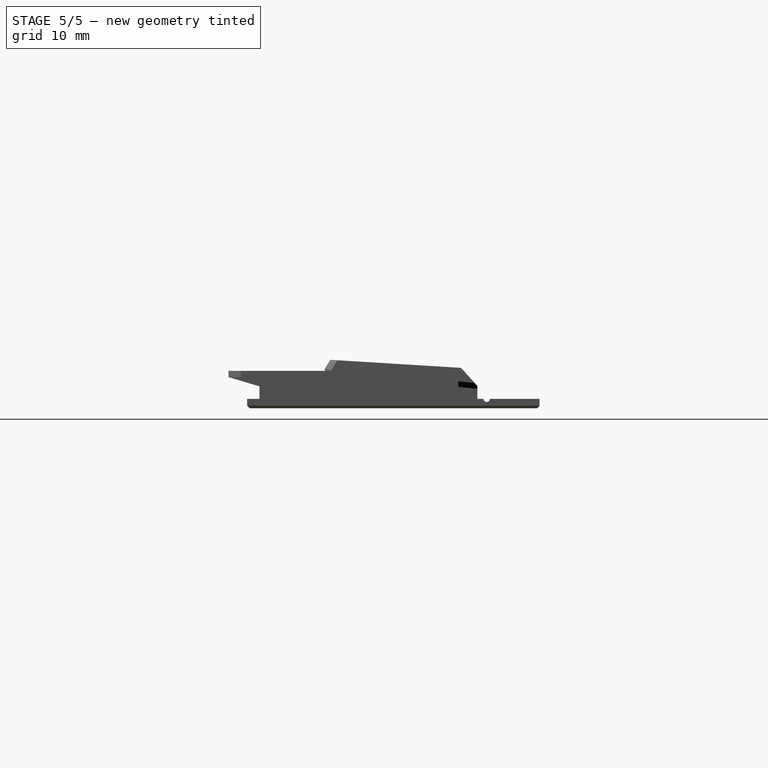
[diagram: stage 5 of 5 — right view after this stage's code; geometry added in this stage tinted green]
FEATURE [PartDesign::Chamfer] Chamfer002
  Angle = 45
  Base = -> Chamfer001 [Edge148,Edge172,Edge288,Edge203,Edge475,Edge395,Edge251,Edge353,Edge480,Edge392]
  BaseFeature = -> Chamfer001
  ChamferType = 0
  FlipDirection = false
  Size = 1.5
  Size2 = 1
  SupportTransform = false
FEATURE [Sketcher::SketchObject] Sketch009
  FullyConstrained = true
  MapMode = 5
  Placement = pos=(0,0,0) rot=(0,1,0;3.14159rad)
  Support = -> [XY_Plane]
  expr: Constraints[44] = 53.3 / 7 * 4
  expr: Constraints[50] = 53.3 / 7 * 3
  expr: Constraints[53] = 106.6 / 8 * 7
  sketch-geometry (26):
    g0: LineSegment StartX=-46.6375 StartY=-40 StartZ=0 EndX=-31.0917 EndY=-40 EndZ=0
    g1: LineSegment StartX=-31.0917 StartY=-40 StartZ=0 EndX=-15.5458 EndY=-40 EndZ=0
    g2: LineSegment StartX=-15.5458 StartY=-40 StartZ=0 EndX=0 EndY=-40 EndZ=0
    g3: LineSegment StartX=0 StartY=-40 StartZ=0 EndX=15.5458 EndY=-40 EndZ=0
    g4: LineSegment StartX=15.5458 StartY=-40 StartZ=0 EndX=31.0917 EndY=-40 EndZ=0
    g5: LineSegment StartX=31.0917 StartY=-40 StartZ=0 EndX=46.6375 EndY=-40 EndZ=0
    g6: Circle CenterX=-46.6375 CenterY=-40 CenterZ=0 NormalX=0 NormalY=0 NormalZ=1 AngleXU=0 Radius=1.5
    g7: Circle CenterX=-31.0917 CenterY=-40 CenterZ=0 NormalX=0 NormalY=0 NormalZ=1 AngleXU=0 Radius=1.5
    g8: Circle CenterX=-15.5458 CenterY=-40 CenterZ=0 NormalX=0 NormalY=0 NormalZ=1 AngleXU=0 Radius=1.5
    g9: Circle CenterX=0 CenterY=-40 CenterZ=0 NormalX=0 NormalY=0 NormalZ=1 AngleXU=0 Radius=1.5
    g10: Circle CenterX=15.5458 CenterY=-40 CenterZ=0 NormalX=0 NormalY=0 NormalZ=1 AngleXU=0 Radius=1.5
    g11: Circle CenterX=31.0917 CenterY=-40 CenterZ=0 NormalX=0 NormalY=0 NormalZ=1 AngleXU=0 Radius=1.5
    g12: Circle CenterX=46.6375 CenterY=-40 CenterZ=0 NormalX=0 NormalY=0 NormalZ=1 AngleXU=0 Radius=1.5
    g13: Circle CenterX=-38.8429 CenterY=-30 CenterZ=0 NormalX=0 NormalY=0 NormalZ=1 AngleXU=0 Radius=1.5
    g14: Circle CenterX=-22.8429 CenterY=-30 CenterZ=0 NormalX=0 NormalY=0 NormalZ=1 AngleXU=0 Radius=1.5
    g15: Circle CenterX=-6.84286 CenterY=-30 CenterZ=0 NormalX=0 NormalY=0 NormalZ=1 AngleXU=0 Radius=1.5
    g16: Circle CenterX=22.4571 CenterY=-30 CenterZ=0 NormalX=0 NormalY=0 NormalZ=1 AngleXU=0 Radius=1.5
    g17: Circle CenterX=38.4571 CenterY=-30 CenterZ=0 NormalX=0 NormalY=0 NormalZ=1 AngleXU=0 Radius=1.5
    g18: LineSegment StartX=-38.8429 StartY=-30 StartZ=0 EndX=-22.8429 EndY=-30 EndZ=0
    g19: LineSegment StartX=-22.8429 StartY=-30 StartZ=0 EndX=-6.84286 EndY=-30 EndZ=0
    g20: LineSegment StartX=22.4571 StartY=-30 StartZ=0 EndX=38.4571 EndY=-30 EndZ=0
    g21: LineSegment StartX=38.4571 StartY=-30 StartZ=0 EndX=30.4571 EndY=0 EndZ=0
    g22: LineSegment StartX=30.4571 StartY=0 StartZ=0 EndX=22.4571 EndY=-30 EndZ=0
    g23: LineSegment StartX=-6.84286 StartY=-30 StartZ=0 EndX=22.4571 EndY=-30 EndZ=0
    g24: LineSegment StartX=-38.8429 StartY=-30 StartZ=0 EndX=-22.8429 EndY=0 EndZ=0
    g25: LineSegment StartX=-22.8429 StartY=0 StartZ=0 EndX=-6.84286 EndY=-30 EndZ=0
  constraints (56):
    c: Horizontal(g0)
    c: Coincident(g0,g1)
    c: Horizontal(g1)
    c: Coincident(g1,g2)
    c: PointOnObject(g2,g-2)
    c: Horizontal(g2)
    c: Coincident(g2,g3)
    c: Horizontal(g3)
    c: Coincident(g3,g4)
    c: Horizontal(g4)
    c: Coincident(g4,g5)
    c: Horizontal(g5)
    c: Equal(g5,g4)
    c: Equal(g4,g3)
    c: Equal(g3,g2)
    c: Equal(g2,g1)
    c: Equal(g1,g0)
    c: Coincident(g6,g0)
    c: Coincident(g7,g0)
    c: Coincident(g8,g1)
    c: Coincident(g9,g2)
    c: Coincident(g10,g3)
    c: Coincident(g11,g4)
    c: Coincident(g12,g5)
    c: Coincident(g18,g13)
    c: Coincident(g18,g14)
    c: Horizontal(g18)
    c: Coincident(g18,g19)
    c: Coincident(g19,g15)
    c: Horizontal(g19)
    c: Coincident(g20,g16)
    c: Coincident(g20,g17)
    c: Horizontal(g20)
    c: Coincident(g20,g21)
    c: PointOnObject(g21,g-1)
    c: Coincident(g21,g22)
    c: Coincident(g22,g20)
    c: Coincident(g23,g15)
    c: Coincident(g23,g16)
    c: Horizontal(g23)
    c: Equal(g18,g19)
    c: Equal(g19,g20)
    c: DistanceX(g20,g20) = 16
    c: Equal(g22,g21)
    c: DistanceX(g-1,g21) = 30.4571
    c: Coincident(g24,g13)
    c: PointOnObject(g24,g-1)
    c: Coincident(g24,g25)
    c: Coincident(g25,g15)
    c: Equal(g24,g25)
    c: DistanceX(g24,g-1) = 22.8429
    c: DistanceY(g13,g-1) = 30
    c: DistanceY(g6,g-1) = 40
    c: DistanceX(g6,g12) = 93.275
    c: Diameter(g6) = 3
    c: Equal(g6, g7-g17) x11
FEATURE [PartDesign::Pocket] Pocket007
  BaseFeature = -> Chamfer002
  Length = 3.2
  Length2 = 100
  Profile = -> Sketch009
  Type = 0
FEATURE [PartDesign::Chamfer] Chamfer003
  Angle = 45
  Base = -> Pocket007 [Face1]
  BaseFeature = -> Pocket007
  ChamferType = 0
  FlipDirection = false
  Size = 0.4
  Size2 = 1
  SupportTransform = false
FEATURE [PartDesign::Body] Body
  Group = -> [Sketch,Pad,Sketch001,Pocket,LinearPattern,Sketch002,Pocket001,Sketch003,Pocket002,Sketch004,Pad001,Sketch005,Pocket003,Sketch006,Pocket004,Mirrored,Sketch007,Pocket005,Sketch008,Pocket006,Mirrored001,Chamfer,Chamfer001,Chamfer002,Sketch009,Pocket007,Chamfer003]
  Origin = -> Origin
  Tip = -> Chamfer003
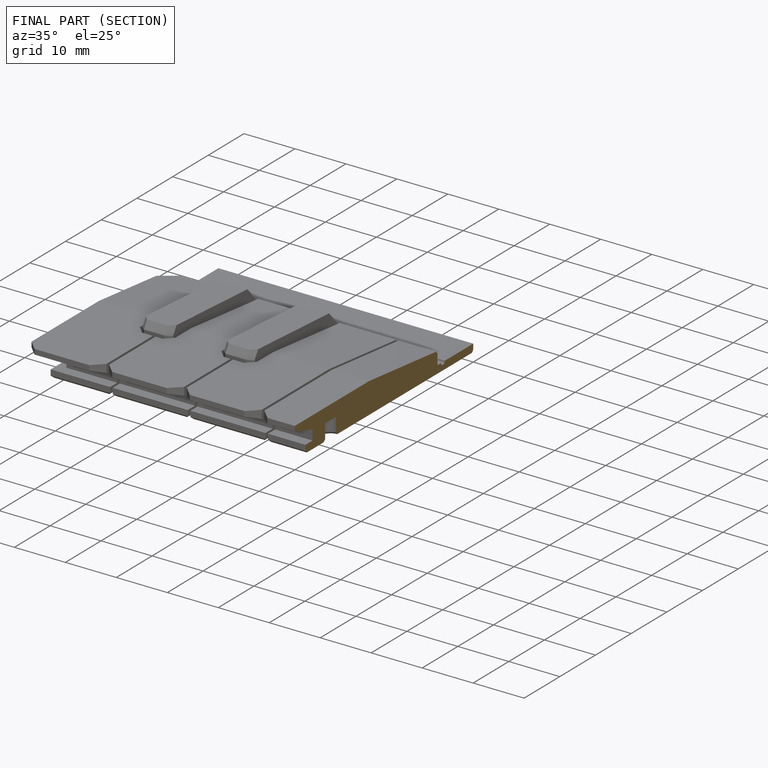
[diagram: finished part — half-section view (interior)]
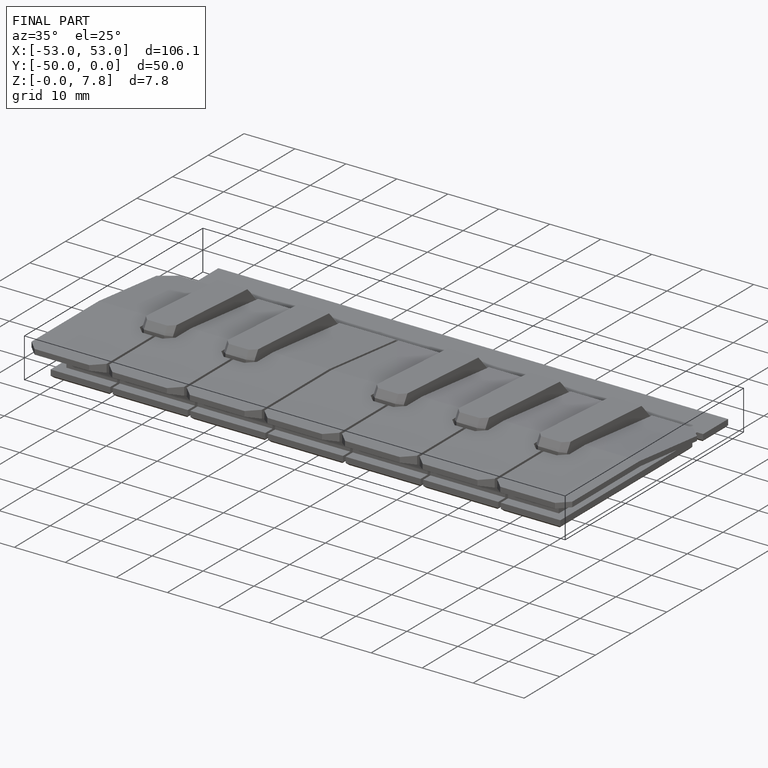
[diagram: finished part — iso view with bounding-box wireframe]
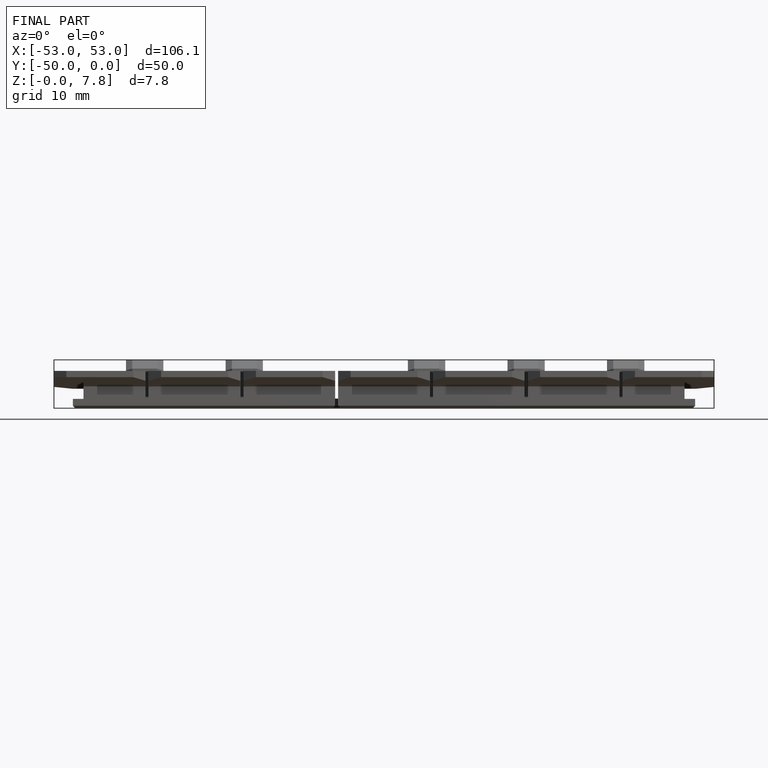
[diagram: finished part — front view with bounding-box wireframe]
